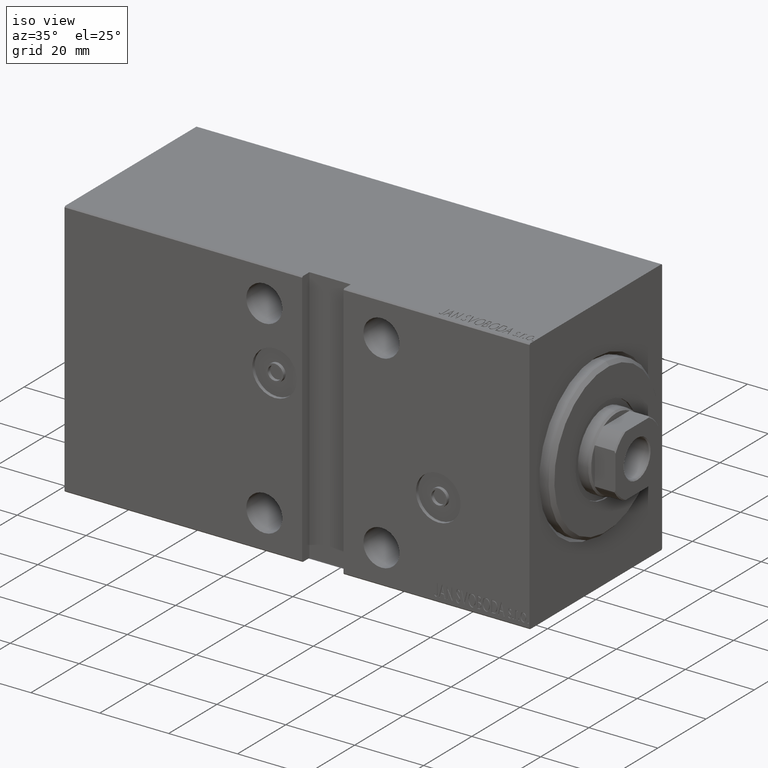
[diagram: clean part render]
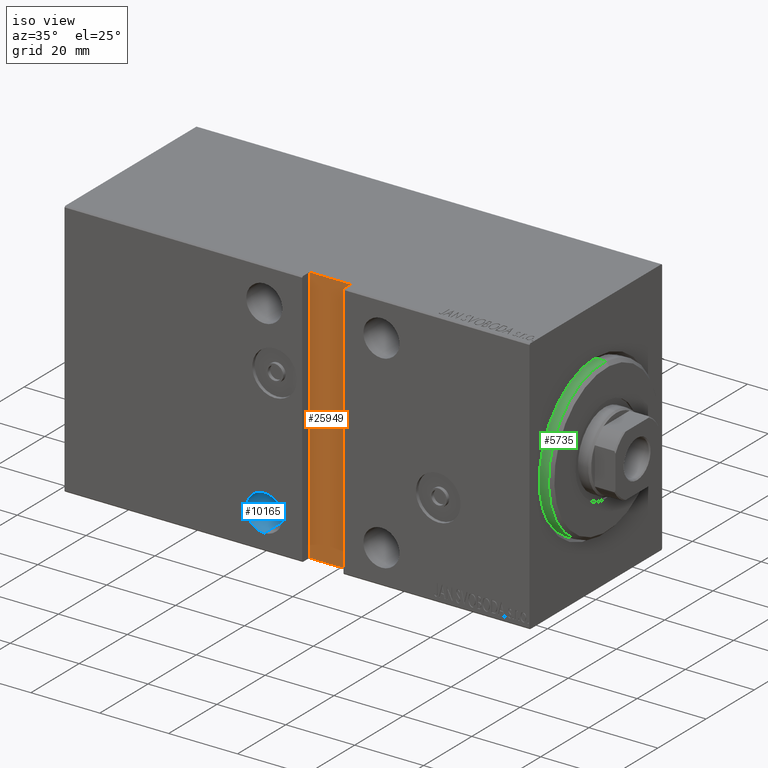
[diagram: same view with three faces highlighted in distinct colors, each labeled with its STEP entity id]
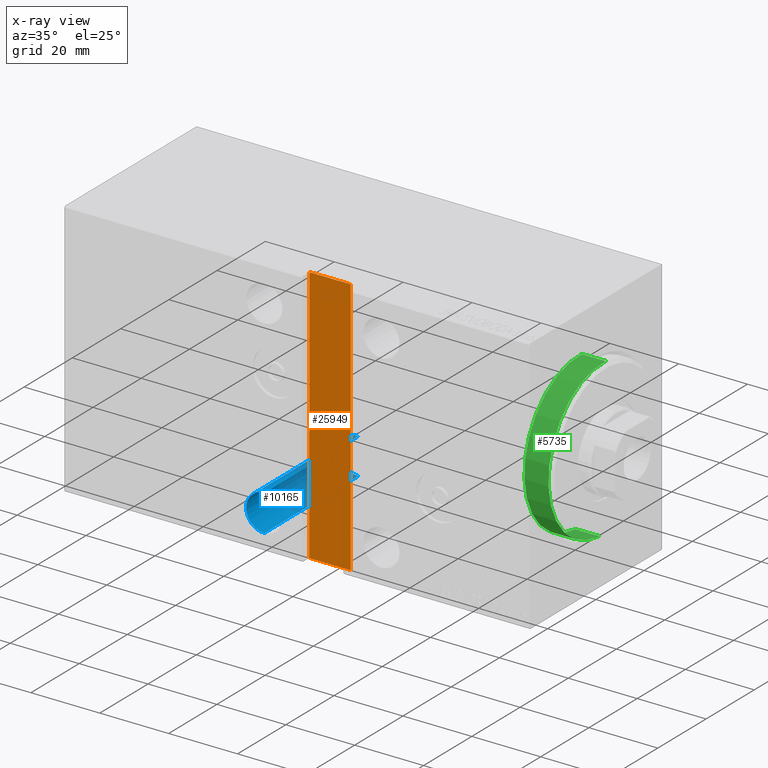
[diagram: x-ray of the same camera — body ghosted, the three highlighted faces saturated]
A machine part, iso view with three faces highlighted in distinct colors.
The next image is the same camera in x-ray (body ghosted, the three faces saturated) — at least one of them is partly hidden behind the body in this view.
Their STEP definitions:

[orange] entity #25949 — the highlighted planar face has unit normal (0, -1, -0).
#2276 = EDGE_CURVE ( 'NONE', #43648, #33770, #17066, .T. ) ;
#2517 = DIRECTION ( 'NONE',  ( -0.000000000000000000, 1.000000000000000000, 0.000000000000000000 ) ) ;
#6335 = VECTOR ( 'NONE', #33077, 1000.000000000000000 ) ;
#6504 = LINE ( 'NONE', #10254, #6335 ) ;
#7544 = DIRECTION ( 'NONE',  ( -1.850371707708594070E-16, 0.000000000000000000, -1.000000000000000000 ) ) ;
#7997 = VECTOR ( 'NONE', #41503, 1000.000000000000000 ) ;
#10254 = CARTESIAN_POINT ( 'NONE',  ( 54.00000000000000000, 24.50000000000000000, 37.50000000000001421 ) ) ;
#10760 = EDGE_CURVE ( 'NONE', #23090, #43648, #6504, .T. ) ;
#10858 = EDGE_CURVE ( 'NONE', #11396, #33770, #10906, .T. ) ;
#10906 = LINE ( 'NONE', #17982, #35313 ) ;
#11396 = VERTEX_POINT ( 'NONE', #22996 ) ;
#11620 = CARTESIAN_POINT ( 'NONE',  ( 54.00000000000000000, 24.50000000000000000, 37.50000000000001421 ) ) ;
#13042 = CARTESIAN_POINT ( 'NONE',  ( 66.00000000000001421, 24.50000000000000000, 37.50000000000001421 ) ) ;
#14072 = LINE ( 'NONE', #11620, #7997 ) ;
#14361 = CARTESIAN_POINT ( 'NONE',  ( 66.00000000000001421, 24.50000000000000000, -37.50000000000000000 ) ) ;
#17066 = LINE ( 'NONE', #30783, #20272 ) ;
#17982 = CARTESIAN_POINT ( 'NONE',  ( 54.00000000000000000, 24.50000000000000000, -37.50000000000000000 ) ) ;
#19355 = FACE_OUTER_BOUND ( 'NONE', #26544, .T. ) ;
#20272 = VECTOR ( 'NONE', #7544, 1000.000000000000000 ) ;
#20847 = ORIENTED_EDGE ( 'NONE', *, *, #10760, .T. ) ;
#22996 = CARTESIAN_POINT ( 'NONE',  ( 54.00000000000000000, 24.50000000000000000, -37.50000000000000000 ) ) ;
#23090 = VERTEX_POINT ( 'NONE', #39041 ) ;
#24910 = EDGE_CURVE ( 'NONE', #23090, #11396, #14072, .T. ) ;
#25347 = CARTESIAN_POINT ( 'NONE',  ( 0.000000000000000000, 24.50000000000000000, 0.000000000000000000 ) ) ;
#25949 = ADVANCED_FACE ( 'NONE', ( #19355 ), #42384, .T. ) ;
#26544 = EDGE_LOOP ( 'NONE', ( #28896, #30376, #20847, #40116 ) ) ;
#27295 = DIRECTION ( 'NONE',  ( 1.000000000000000000, 0.000000000000000000, 0.000000000000000000 ) ) ;
#28896 = ORIENTED_EDGE ( 'NONE', *, *, #10858, .F. ) ;
#29233 = AXIS2_PLACEMENT_3D ( 'NONE', #25347, #2517, #33083 ) ;
#30376 = ORIENTED_EDGE ( 'NONE', *, *, #24910, .F. ) ;
#30783 = CARTESIAN_POINT ( 'NONE',  ( 66.00000000000001421, 24.50000000000000000, 37.50000000000001421 ) ) ;
#33077 = DIRECTION ( 'NONE',  ( 1.000000000000000000, 0.000000000000000000, 0.000000000000000000 ) ) ;
#33083 = DIRECTION ( 'NONE',  ( 0.000000000000000000, -0.000000000000000000, 1.000000000000000000 ) ) ;
#33770 = VERTEX_POINT ( 'NONE', #14361 ) ;
#35313 = VECTOR ( 'NONE', #27295, 1000.000000000000000 ) ;
#39041 = CARTESIAN_POINT ( 'NONE',  ( 54.00000000000000000, 24.50000000000000000, 37.50000000000001421 ) ) ;
#40116 = ORIENTED_EDGE ( 'NONE', *, *, #2276, .T. ) ;
#41503 = DIRECTION ( 'NONE',  ( 0.000000000000000000, 0.000000000000000000, -1.000000000000000000 ) ) ;
#42384 = PLANE ( 'NONE',  #29233 ) ;
#43648 = VERTEX_POINT ( 'NONE', #13042 ) ;

[blue] entity #10165 — the highlighted cylindrical surface (edge-blend (fillet) strip) has radius 5.25 mm, axis along (0, -1, -0).
#416 = EDGE_CURVE ( 'NONE', #7703, #10935, #18809, .T. ) ;
#2023 = DIRECTION ( 'NONE',  ( -0.000000000000000000, 1.000000000000000000, -0.000000000000000000 ) ) ;
#3334 = CARTESIAN_POINT ( 'NONE',  ( 77.00000000000000000, -11.49999999999999645, -22.24999999999999645 ) ) ;
#4112 = DIRECTION ( 'NONE',  ( -0.000000000000000000, 1.000000000000000000, -0.000000000000000000 ) ) ;
#4206 = DIRECTION ( 'NONE',  ( 0.000000000000000000, 0.000000000000000000, -1.000000000000000000 ) ) ;
#4921 = FACE_OUTER_BOUND ( 'NONE', #39907, .T. ) ;
#5323 = CIRCLE ( 'NONE', #19443, 5.250000000000004441 ) ;
#6503 = LINE ( 'NONE', #36830, #42221 ) ;
#7079 = ORIENTED_EDGE ( 'NONE', *, *, #32366, .T. ) ;
#7427 = CARTESIAN_POINT ( 'NONE',  ( 77.00000000000000000, -27.50000000000002487, -22.24999999999999645 ) ) ;
#7703 = VERTEX_POINT ( 'NONE', #3334 ) ;
#10165 = ADVANCED_FACE ( 'NONE', ( #4921 ), #21736, .F. ) ;
#10833 = CARTESIAN_POINT ( 'NONE',  ( 77.00000000000000000, 27.50000000000002487, -22.24999999999999645 ) ) ;
#10856 = DIRECTION ( 'NONE',  ( 0.000000000000000000, 0.000000000000000000, 1.000000000000000000 ) ) ;
#10935 = VERTEX_POINT ( 'NONE', #13799 ) ;
#13799 = CARTESIAN_POINT ( 'NONE',  ( 77.00000000000000000, -11.49999999999999645, -32.75000000000000000 ) ) ;
#14627 = EDGE_CURVE ( 'NONE', #7703, #21464, #33788, .T. ) ;
#15971 = AXIS2_PLACEMENT_3D ( 'NONE', #38500, #24998, #4206 ) ;
#17638 = ORIENTED_EDGE ( 'NONE', *, *, #43421, .F. ) ;
#18627 = ORIENTED_EDGE ( 'NONE', *, *, #416, .F. ) ;
#18809 = CIRCLE ( 'NONE', #15971, 5.250000000000000888 ) ;
#19443 = AXIS2_PLACEMENT_3D ( 'NONE', #21258, #27680, #10856 ) ;
#19666 = AXIS2_PLACEMENT_3D ( 'NONE', #32361, #2023, #41876 ) ;
#21258 = CARTESIAN_POINT ( 'NONE',  ( 77.00000000000000000, 27.50000000000002487, -27.50000000000000000 ) ) ;
#21464 = VERTEX_POINT ( 'NONE', #10833 ) ;
#21736 = CYLINDRICAL_SURFACE ( 'NONE', #19666, 5.250000000000004441 ) ;
#22328 = CARTESIAN_POINT ( 'NONE',  ( 77.00000000000000000, 27.50000000000002487, -32.75000000000000000 ) ) ;
#24998 = DIRECTION ( 'NONE',  ( -0.000000000000000000, 1.000000000000000000, -0.000000000000000000 ) ) ;
#27056 = VERTEX_POINT ( 'NONE', #22328 ) ;
#27680 = DIRECTION ( 'NONE',  ( 0.000000000000000000, 1.000000000000000000, 0.000000000000000000 ) ) ;
#29747 = DIRECTION ( 'NONE',  ( -0.000000000000000000, 1.000000000000000000, -0.000000000000000000 ) ) ;
#32361 = CARTESIAN_POINT ( 'NONE',  ( 77.00000000000000000, -27.50000000000002487, -27.50000000000000000 ) ) ;
#32366 = EDGE_CURVE ( 'NONE', #21464, #27056, #5323, .T. ) ;
#33788 = LINE ( 'NONE', #7427, #37423 ) ;
#35009 = ORIENTED_EDGE ( 'NONE', *, *, #14627, .T. ) ;
#36830 = CARTESIAN_POINT ( 'NONE',  ( 77.00000000000000000, -27.50000000000002487, -32.75000000000000000 ) ) ;
#37423 = VECTOR ( 'NONE', #4112, 1000.000000000000000 ) ;
#38500 = CARTESIAN_POINT ( 'NONE',  ( 77.00000000000000000, -11.49999999999999645, -27.50000000000000000 ) ) ;
#39907 = EDGE_LOOP ( 'NONE', ( #17638, #18627, #35009, #7079 ) ) ;
#41876 = DIRECTION ( 'NONE',  ( 0.000000000000000000, 0.000000000000000000, 1.000000000000000000 ) ) ;
#42221 = VECTOR ( 'NONE', #29747, 1000.000000000000000 ) ;
#43421 = EDGE_CURVE ( 'NONE', #10935, #27056, #6503, .T. ) ;

[green] entity #5735 — the highlighted cylindrical surface (partial cylindrical patch) has radius 22.5 mm, axis along (-1, 0, 0).
#526 = VECTOR ( 'NONE', #31885, 1000.000000000000000 ) ;
#1056 = EDGE_LOOP ( 'NONE', ( #36626, #20258, #11129, #32180 ) ) ;
#3343 = DIRECTION ( 'NONE',  ( -1.000000000000000000, -0.000000000000000000, -0.000000000000000000 ) ) ;
#4473 = EDGE_CURVE ( 'NONE', #32117, #21829, #27740, .T. ) ;
#5070 = VERTEX_POINT ( 'NONE', #17841 ) ;
#5300 = CARTESIAN_POINT ( 'NONE',  ( -5.000000000000000000, 0.000000000000000000, 22.50000000000000355 ) ) ;
#5735 = ADVANCED_FACE ( 'NONE', ( #20612 ), #17070, .T. ) ;
#6946 = CARTESIAN_POINT ( 'NONE',  ( 3.000000000000000000, 2.755455298081545172E-15, -22.50000000000000355 ) ) ;
#8061 = LINE ( 'NONE', #32403, #31512 ) ;
#11129 = ORIENTED_EDGE ( 'NONE', *, *, #38989, .T. ) ;
#15102 = CARTESIAN_POINT ( 'NONE',  ( 1.999999999999999112, 2.755455298081545172E-15, -22.50000000000000355 ) ) ;
#16507 = VERTEX_POINT ( 'NONE', #5300 ) ;
#17070 = CYLINDRICAL_SURFACE ( 'NONE', #42947, 22.50000000000000355 ) ;
#17301 = DIRECTION ( 'NONE',  ( 0.000000000000000000, 0.000000000000000000, -1.000000000000000000 ) ) ;
#17841 = CARTESIAN_POINT ( 'NONE',  ( 1.999999999999999112, 0.000000000000000000, 22.50000000000000355 ) ) ;
#20258 = ORIENTED_EDGE ( 'NONE', *, *, #40201, .T. ) ;
#20612 = FACE_OUTER_BOUND ( 'NONE', #1056, .T. ) ;
#21563 = CIRCLE ( 'NONE', #42065, 22.50000000000000355 ) ;
#21829 = VERTEX_POINT ( 'NONE', #36915 ) ;
#23071 = CIRCLE ( 'NONE', #25886, 22.50000000000000355 ) ;
#25352 = CARTESIAN_POINT ( 'NONE',  ( -5.000000000000000000, 0.000000000000000000, 0.000000000000000000 ) ) ;
#25886 = AXIS2_PLACEMENT_3D ( 'NONE', #37018, #43427, #17301 ) ;
#27247 = DIRECTION ( 'NONE',  ( 0.000000000000000000, 0.000000000000000000, 1.000000000000000000 ) ) ;
#27740 = LINE ( 'NONE', #6946, #526 ) ;
#28207 = DIRECTION ( 'NONE',  ( -1.000000000000000000, -0.000000000000000000, -0.000000000000000000 ) ) ;
#31225 = CARTESIAN_POINT ( 'NONE',  ( 3.000000000000000000, 0.000000000000000000, 0.000000000000000000 ) ) ;
#31512 = VECTOR ( 'NONE', #28207, 1000.000000000000000 ) ;
#31557 = DIRECTION ( 'NONE',  ( -1.000000000000000000, 0.000000000000000000, 0.000000000000000000 ) ) ;
#31885 = DIRECTION ( 'NONE',  ( -1.000000000000000000, -0.000000000000000000, -0.000000000000000000 ) ) ;
#32117 = VERTEX_POINT ( 'NONE', #15102 ) ;
#32180 = ORIENTED_EDGE ( 'NONE', *, *, #32617, .F. ) ;
#32403 = CARTESIAN_POINT ( 'NONE',  ( 3.000000000000000000, 0.000000000000000000, 22.50000000000000355 ) ) ;
#32617 = EDGE_CURVE ( 'NONE', #21829, #16507, #21563, .T. ) ;
#35739 = DIRECTION ( 'NONE',  ( 0.000000000000000000, 0.000000000000000000, 1.000000000000000000 ) ) ;
#36626 = ORIENTED_EDGE ( 'NONE', *, *, #4473, .F. ) ;
#36915 = CARTESIAN_POINT ( 'NONE',  ( -5.000000000000000000, 2.755455298081545172E-15, -22.50000000000000355 ) ) ;
#37018 = CARTESIAN_POINT ( 'NONE',  ( 1.999999999999999112, 0.000000000000000000, 0.000000000000000000 ) ) ;
#38989 = EDGE_CURVE ( 'NONE', #5070, #16507, #8061, .T. ) ;
#40201 = EDGE_CURVE ( 'NONE', #32117, #5070, #23071, .T. ) ;
#42065 = AXIS2_PLACEMENT_3D ( 'NONE', #25352, #31557, #35739 ) ;
#42947 = AXIS2_PLACEMENT_3D ( 'NONE', #31225, #3343, #27247 ) ;
#43427 = DIRECTION ( 'NONE',  ( -1.000000000000000000, 0.000000000000000000, 0.000000000000000000 ) ) ;